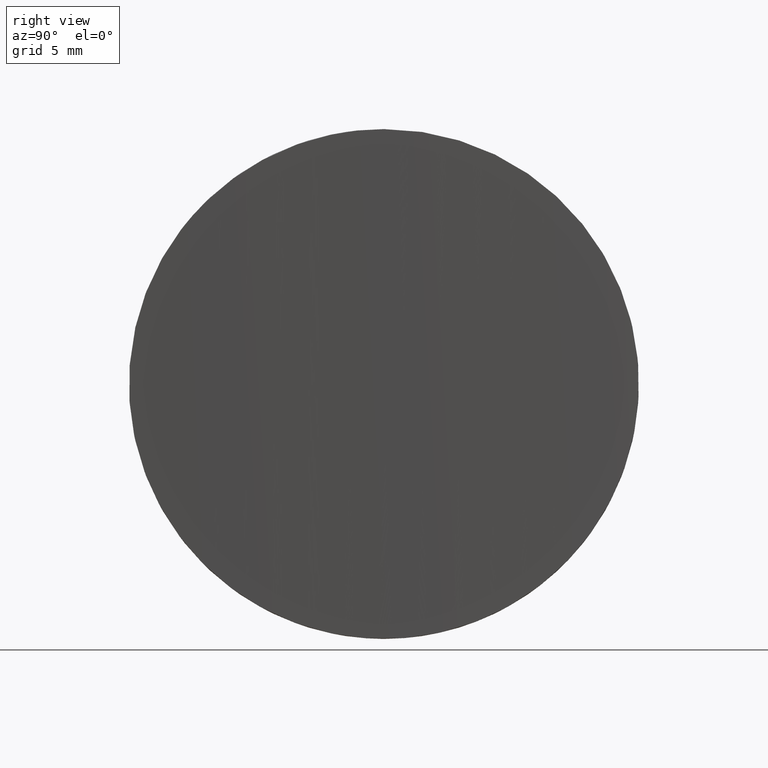
[diagram: clean part render]
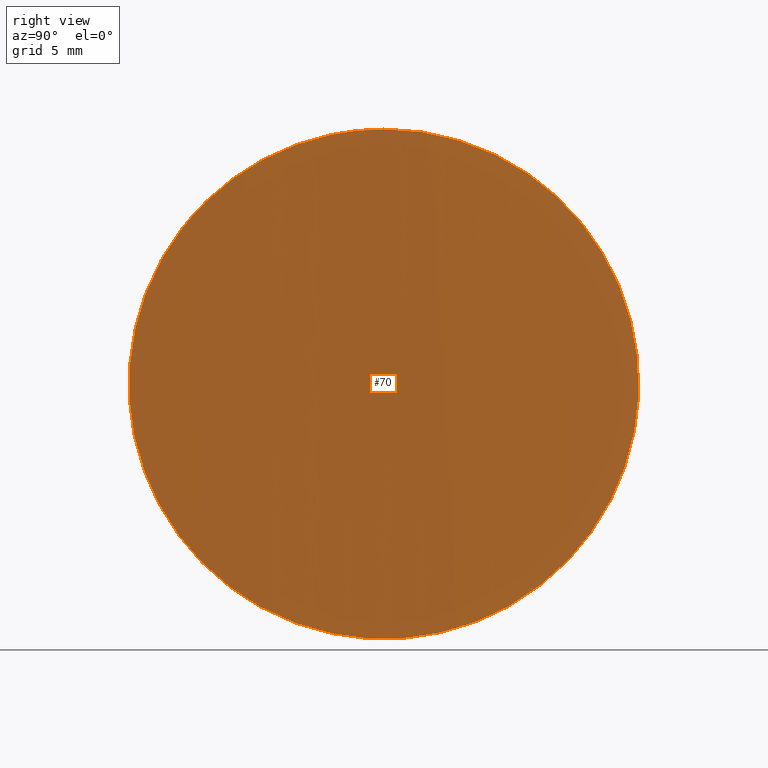
[diagram: same view with one face highlighted and labeled with its STEP entity id]
A machine part, right view. The second image highlights one B-rep face of the part: STEP entity #70.
In plain terms, the highlighted cylindrical surface (partial cylindrical patch) has radius 400 mm, axis along (-0, -0, 1).
Its self-contained STEP definition (entity closure, byte-faithful):
#1 = CARTESIAN_POINT ( 'NONE',  ( 6.146628012485342296, 10.83136066936597253, -6.253013581894133921 ) ) ;
#2 = CARTESIAN_POINT ( 'NONE',  ( 6.123337939131231700, 9.942830926638224653, -7.619286530728350826 ) ) ;
#4 = CARTESIAN_POINT ( 'NONE',  ( 6.192759942643333737, -12.41757896676716655, -1.648483333283064844 ) ) ;
#5 = CARTESIAN_POINT ( 'NONE',  ( 6.185576091724369618, -12.18329529484395657, 2.825431453864876374 ) ) ;
#8 = CARTESIAN_POINT ( 'NONE',  ( 6.157787361449674535, -11.23847409537069275, 5.533509746471839463 ) ) ;
#9 = CARTESIAN_POINT ( 'NONE',  ( 6.013057621313545376, -3.255551128916625903, 12.07552318143812897 ) ) ;
#10 = EDGE_LOOP ( 'NONE', ( #60 ) ) ;
#18 = CARTESIAN_POINT ( 'NONE',  ( 6.182389590245117361, 12.07859930265951576, 3.244169884887839306 ) ) ;
#19 = CARTESIAN_POINT ( 'NONE',  ( 6.024107746498230220, 4.407817227377735847, 11.70422864460534740 ) ) ;
#22 = CARTESIAN_POINT ( 'NONE',  ( 6.009855267935093615, 2.836132443568568196, 12.18081189340468384 ) ) ;
#23 = CARTESIAN_POINT ( 'NONE',  ( 6.195333849491618139, -12.49915697081703492, -0.8370509858345497323 ) ) ;
#24 = FACE_OUTER_BOUND ( 'NONE', #10, .T. ) ;
#26 = CARTESIAN_POINT ( 'NONE',  ( 6.195373083902993905, -12.50041185944047584, 0.3994974065779912098 ) ) ;
#27 = CARTESIAN_POINT ( 'NONE',  ( 6.110576442947489362, -9.422390934939841145, 8.254352400043046600 ) ) ;
#30 = DIRECTION ( 'NONE',  ( -0.000000000000000000, -0.000000000000000000, 1.000000000000000000 ) ) ;
#32 = CARTESIAN_POINT ( 'NONE',  ( 6.084872925812780942, 8.260223106439537943, -9.418034144288734311 ) ) ;
#34 = CARTESIAN_POINT ( 'NONE',  ( 6.003161026020168656, 1.642337324907690688, -12.39850151369221543 ) ) ;
#35 = CARTESIAN_POINT ( 'NONE',  ( 6.091314075313044363, 8.551377486908908310, 9.126344392345430379 ) ) ;
#37 = CARTESIAN_POINT ( 'NONE',  ( 6.072161525966174977, 7.627722020357707855, -9.936340637095657513 ) ) ;
#38 = CARTESIAN_POINT ( 'NONE',  ( 6.194750379332870871, 12.48054448172894659, -0.8096473728584627771 ) ) ;
#39 = CARTESIAN_POINT ( 'NONE',  ( 6.019970151853106799, -4.016119921733115383, -11.84433841308240076 ) ) ;
#41 = CARTESIAN_POINT ( 'NONE',  ( 6.122848020541667324, -9.916230410327756317, -7.621521325918291900 ) ) ;
#43 = CARTESIAN_POINT ( 'NONE',  ( 6.146771139796112671, -10.84445293440541214, -6.270274400192882958 ) ) ;
#44 = CARTESIAN_POINT ( 'NONE',  ( 6.182575659098514365, -12.08475223628104978, 3.221281811358581493 ) ) ;
#46 = CARTESIAN_POINT ( 'NONE',  ( 6.129053523174843754, -10.16257157772130881, -7.289668308829494237 ) ) ;
#53 = CARTESIAN_POINT ( 'NONE',  ( 6.157297607718948740, 11.21832462417747145, -5.528810489772101988 ) ) ;
#54 = CARTESIAN_POINT ( 'NONE',  ( 6.048427260961878105, 6.261082283034437701, 10.84970524661192925 ) ) ;
#55 = CARTESIAN_POINT ( 'NONE',  ( 6.192839296913220437, 12.42014702550840433, 1.632974528532101566 ) ) ;
#56 = CARTESIAN_POINT ( 'NONE',  ( 6.140976876159051301, 10.62133764608338282, -6.603259810590143886 ) ) ;
#58 = CARTESIAN_POINT ( 'NONE',  ( 6.110429657886331078, 9.416160116189347562, 8.261404495091314359 ) ) ;
#60 = ORIENTED_EDGE ( 'NONE', *, *, #202, .F. ) ;
#63 = CARTESIAN_POINT ( 'NONE',  ( 6.037938548794956617, -5.520821935687439286, -11.22219000995281135 ) ) ;
#64 = CARTESIAN_POINT ( 'NONE',  ( 6.009992528056185890, -2.856119019019458971, 12.17631358785102158 ) ) ;
#66 = CARTESIAN_POINT ( 'NONE',  ( 6.002477632064415758, -1.622119057366991468, -12.42148640919038094 ) ) ;
#70 = ADVANCED_FACE ( 'NONE', ( #24 ), #101, .F. ) ;
#72 = CARTESIAN_POINT ( 'NONE',  ( 6.066111788912701641, 7.280143014237725474, 10.16938206163811920 ) ) ;
#73 = CARTESIAN_POINT ( 'NONE',  ( 6.019577000375060827, 4.029251924991554823, -11.86116594192088769 ) ) ;
#74 = AXIS2_PLACEMENT_3D ( 'NONE', #172, #30, #196 ) ;
#78 = VERTEX_POINT ( 'NONE', #150 ) ;
#79 = CARTESIAN_POINT ( 'NONE',  ( 6.054607197223046633, -6.618081816811829832, 10.61222769656494513 ) ) ;
#80 = CARTESIAN_POINT ( 'NONE',  ( 6.175248488428265681, -11.83986393791724545, -4.029446606105141271 ) ) ;
#82 = CARTESIAN_POINT ( 'NONE',  ( 6.000004547679341549, 0.4123207205355654548, -12.49985447425301643 ) ) ;
#83 = CARTESIAN_POINT ( 'NONE',  ( 6.038212835761652464, -5.540699467217943486, 11.21242077005258153 ) ) ;
#92 = CARTESIAN_POINT ( 'NONE',  ( 6.033172124512112156, 5.165269860163295590, -11.39025984848005812 ) ) ;
#94 = CARTESIAN_POINT ( 'NONE',  ( 6.037693519896494720, 5.543134663262837769, 11.23365219354805511 ) ) ;
#97 = CARTESIAN_POINT ( 'NONE',  ( 6.020181577316135346, -4.037021322767073706, 11.83720119360839362 ) ) ;
#99 = CARTESIAN_POINT ( 'NONE',  ( 6.028077850516560865, -4.783933938323621682, -11.56979993341457380 ) ) ;
#101 = CYLINDRICAL_SURFACE ( 'NONE', #74, 400.0000000000000000 ) ;
#102 = CARTESIAN_POINT ( 'NONE',  ( 6.147058404578834789, -10.85495487039663054, 6.251887235690273492 ) ) ;
#103 = CARTESIAN_POINT ( 'NONE',  ( 6.182399003464110088, -12.07891686921074559, -3.243236853290445865 ) ) ;
#110 = CARTESIAN_POINT ( 'NONE',  ( 6.048868288991592124, 6.262818696542939989, -10.82567293660520136 ) ) ;
#111 = CARTESIAN_POINT ( 'NONE',  ( 6.000632921979380363, 0.8214610445127457083, -12.47979620932013489 ) ) ;
#112 = CARTESIAN_POINT ( 'NONE',  ( 6.190369560812771788, 12.33960161481612339, -2.037456170331071625 ) ) ;
#113 = CARTESIAN_POINT ( 'NONE',  ( 6.054518583853632840, 6.612596104414897091, -10.61552282645273237 ) ) ;
#116 = CARTESIAN_POINT ( 'NONE',  ( 6.185423850334474949, -12.17830307072661711, -2.846906301853517007 ) ) ;
#118 = CARTESIAN_POINT ( 'NONE',  ( 6.048868241428619896, -6.262793980507262326, 10.82567136440964717 ) ) ;
#120 = CARTESIAN_POINT ( 'NONE',  ( 6.085071607558536932, -8.269375586523686650, 9.409208887251836018 ) ) ;
#127 = CARTESIAN_POINT ( 'NONE',  ( 6.110660994295718851, 9.426383087504110136, -8.250694201021072871 ) ) ;
#128 = CARTESIAN_POINT ( 'NONE',  ( 6.084923883934795441, 8.248234944980014305, 9.401403305905793317 ) ) ;
#130 = CARTESIAN_POINT ( 'NONE',  ( 6.002555829002733212, 1.637918414536502221, 12.41895831973064546 ) ) ;
#132 = CARTESIAN_POINT ( 'NONE',  ( 6.183036689498548455, 12.10046647433261846, -3.239860141599286703 ) ) ;
#136 = CARTESIAN_POINT ( 'NONE',  ( 6.048544533550962221, -6.242062592774856533, -10.83760481162388523 ) ) ;
#137 = CARTESIAN_POINT ( 'NONE',  ( 6.157516903603521108, -11.22886556062441166, -5.552682679826735246 ) ) ;
#138 = CARTESIAN_POINT ( 'NONE',  ( 6.009813076232418005, -2.830663768508550948, -12.18219977434891810 ) ) ;
#144 = CARTESIAN_POINT ( 'NONE',  ( 6.185454634312091748, 12.17931707560206789, 2.843132086004452663 ) ) ;
#145 = CARTESIAN_POINT ( 'NONE',  ( 6.012402570598675666, 3.250089502555756127, -12.09767226307772425 ) ) ;
#147 = CARTESIAN_POINT ( 'NONE',  ( 6.175275119368023091, 11.84075711294213917, 4.026620214091501282 ) ) ;
#149 = CARTESIAN_POINT ( 'NONE',  ( 6.000000000000007994, 0.8258646092554402518, 12.50000000000000000 ) ) ;
#150 = CARTESIAN_POINT ( 'NONE',  ( 6.000000000000005329, 0.000000000000000000, 12.50000000000000000 ) ) ;
#151 = CARTESIAN_POINT ( 'NONE',  ( 6.002557316587750158, -1.643112825201216376, 12.41894898957312954 ) ) ;
#152 = CARTESIAN_POINT ( 'NONE',  ( 6.084742041649624511, -8.253443447555936174, -9.423099900422780451 ) ) ;
#155 = CARTESIAN_POINT ( 'NONE',  ( 6.110231681831259642, -9.393694438018075132, -8.256979936834337508 ) ) ;
#163 = CARTESIAN_POINT ( 'NONE',  ( 6.012866373640192386, 3.232201398658775648, 12.08185457228019111 ) ) ;
#164 = CARTESIAN_POINT ( 'NONE',  ( 6.192250819230164183, 12.40021410343418751, -1.629174520357876244 ) ) ;
#165 = CARTESIAN_POINT ( 'NONE',  ( 6.157270393845872825, 11.21733570305952554, 5.530708623619385200 ) ) ;
#166 = CARTESIAN_POINT ( 'NONE',  ( 6.162317733142517184, 11.39527657532781468, -5.154153135363703342 ) ) ;
#167 = CARTESIAN_POINT ( 'NONE',  ( 6.195346578863944131, 12.49956411215567798, 0.8219065788394470662 ) ) ;
#168 = CARTESIAN_POINT ( 'NONE',  ( 6.171369802062900867, -11.70858876902946477, 4.396271893822236265 ) ) ;
#170 = CARTESIAN_POINT ( 'NONE',  ( 6.054248877442073073, -6.596468378704126501, -10.62572373590843888 ) ) ;
#172 = CARTESIAN_POINT ( 'NONE',  ( 406.0000000000000000, 0.000000000000000000, -12.50000000000000000 ) ) ;
#173 = CARTESIAN_POINT ( 'NONE',  ( 6.190422942787049188, -12.34132661751526605, 2.026673249851862035 ) ) ;
#174 = CARTESIAN_POINT ( 'NONE',  ( 6.028314394674135102, -4.803597806982202734, 11.56165140727036622 ) ) ;
#181 = CARTESIAN_POINT ( 'NONE',  ( 6.038202630607332644, 5.539972922952198786, -11.21279593005555775 ) ) ;
#183 = CARTESIAN_POINT ( 'NONE',  ( 6.167152121307823975, 11.56572859662831476, 4.793763041593497753 ) ) ;
#185 = CARTESIAN_POINT ( 'NONE',  ( 5.999990978422537147, -0.8113344997902477429, -12.50028869049808655 ) ) ;
#186 = CARTESIAN_POINT ( 'NONE',  ( 6.123511979394779203, -9.949837991465170006, 7.610312949526506721 ) ) ;
#190 = CARTESIAN_POINT ( 'NONE',  ( 6.175485384579126880, -11.84785025850192852, 4.005787983980841460 ) ) ;
#193 = CARTESIAN_POINT ( 'NONE',  ( 6.072293149949133273, 7.611227120878077734, 9.924161704763575287 ) ) ;
#194 = CARTESIAN_POINT ( 'NONE',  ( 6.195366937976045207, 12.50021528564635354, -0.4009690350272067660 ) ) ;
#196 = DIRECTION ( 'NONE',  ( 1.000000000000000000, 0.000000000000000000, 0.000000000000000000 ) ) ;
#198 = CARTESIAN_POINT ( 'NONE',  ( 6.103847008624162740, -9.118664477714130356, -8.559555669642694653 ) ) ;
#200 = CARTESIAN_POINT ( 'NONE',  ( 6.012870298114282974, -3.232579372122826200, -12.08172182564583430 ) ) ;
#201 = CARTESIAN_POINT ( 'NONE',  ( 6.192269463680482922, -12.40081395674986986, 1.623765236911768550 ) ) ;
#202 = EDGE_CURVE ( 'NONE', #78, #78, #215, .T. ) ;
#203 = CARTESIAN_POINT ( 'NONE',  ( 6.072067623432550576, -7.623506361048259627, -9.940309386302944361 ) ) ;
#207 = CARTESIAN_POINT ( 'NONE',  ( 6.175875575332066880, 11.86454731923667261, -4.019080491054027426 ) ) ;
#208 = CARTESIAN_POINT ( 'NONE',  ( 6.005047701022079742, 2.049007105466130962, -12.33767639677808248 ) ) ;
#209 = CARTESIAN_POINT ( 'NONE',  ( 6.123102792114799797, 9.933578296312246536, 7.632137225510549072 ) ) ;
#210 = CARTESIAN_POINT ( 'NONE',  ( 6.140911578673970084, 10.61892798072328148, 6.607362759808928843 ) ) ;
#212 = CARTESIAN_POINT ( 'NONE',  ( 6.000000000000007105, -8.673617379884035472E-16, 12.50000000000000000 ) ) ;
#213 = CARTESIAN_POINT ( 'NONE',  ( 6.000000000000005329, -0.8258646092554449147, 12.49999999999999822 ) ) ;
#215 = B_SPLINE_CURVE_WITH_KNOTS ( 'NONE', 3,
 ( #225, #149, #130, #22, #163, #226, #19, #94, #54, #72, #193, #128, #35, #58, #209, #210, #224, #165, #183, #147, #18, #144, #55, #167, #194, #38, #164, #112, #132, #207, #166, #53, #1, #56, #2, #127, #32, #37, #113, #110, #181, #92, #73, #145, #208, #34, #111, #82, #185, #66, #138, #200, #39, #99, #63, #136, #170, #203, #152, #198, #155, #41, #46, #43, #137, #217, #80, #103, #116, #4, #23, #26, #218, #201, #173, #5, #44, #190, #168, #8, #102, #186, #27, #120, #219, #79, #118, #83, #174, #97, #9, #64, #151, #213, #212 ),
 .UNSPECIFIED., .T., .F.,
 ( 4, 2, 2, 2, 2, 2, 2, 2, 2, 1, 2, 2, 2, 2, 2, 2, 2, 2, 2, 2, 2, 2, 2, 2, 2, 2, 2, 1, 2, 2, 2, 2, 2, 2, 2, 2, 2, 2, 2, 2, 2, 2, 2, 2, 2, 1, 2, 2, 4 ),
 ( 0.000000000000000000, 0.002442416460651527545, 0.003663624690977290883, 0.004884832921303053355, 0.007327249381954574828, 0.008548457612280336432, 0.009769665842606101505, 0.01221208230325763339, 0.01343329053358340019, 0.01465449876390916353, 0.01587570699423493034, 0.01709691522456069715, 0.01953933168521222730, 0.02076053991553799064, 0.02198174814586375744, 0.02442416460651528759, 0.02564537283684105440, 0.02686658106716682468, 0.02930899752781835135, 0.03175141398846988150, 0.03297262221879564831, 0.03419383044912140818, 0.03663624690977294179, 0.03785745514009870860, 0.03907866337042447541, 0.04152107983107600903, 0.04274228806140176889, 0.04396349629172753570, 0.04518470452205330251, 0.04640591275237906238, 0.04884832921303060294, 0.05006953744335636974, 0.05129074567368214349, 0.05373316213433368405, 0.05495437036465944391, 0.05617557859498521072, 0.05861799505563673740, 0.05983920328596250421, 0.06106041151628827102, 0.06228161974661403782, 0.06350282797693979076, 0.06594524443759133825, 0.06838766089824287187, 0.07083007735889440548, 0.07205128558922017923, 0.07327249381954595298, 0.07449370204987172672, 0.07571491028019748659, 0.07815732674084903409 ),
 .UNSPECIFIED. ) ;
#217 = CARTESIAN_POINT ( 'NONE',  ( 6.171116576095903916, -11.69994263284096192, -4.419136688153784576 ) ) ;
#218 = CARTESIAN_POINT ( 'NONE',  ( 6.194744634119879301, -12.48035917814802076, 0.8108237286500608043 ) ) ;
#219 = CARTESIAN_POINT ( 'NONE',  ( 6.072400910826918796, -7.640707504934439065, 9.926888903128702424 ) ) ;
#224 = CARTESIAN_POINT ( 'NONE',  ( 6.146637576849811602, 10.83170187697699127, 6.252327261235600453 ) ) ;
#225 = CARTESIAN_POINT ( 'NONE',  ( 6.000000000000007105, -8.673617379884035472E-16, 12.50000000000000000 ) ) ;
#226 = CARTESIAN_POINT ( 'NONE',  ( 6.019983304453234929, 4.017516240544953376, 11.84389712232324854 ) ) ;